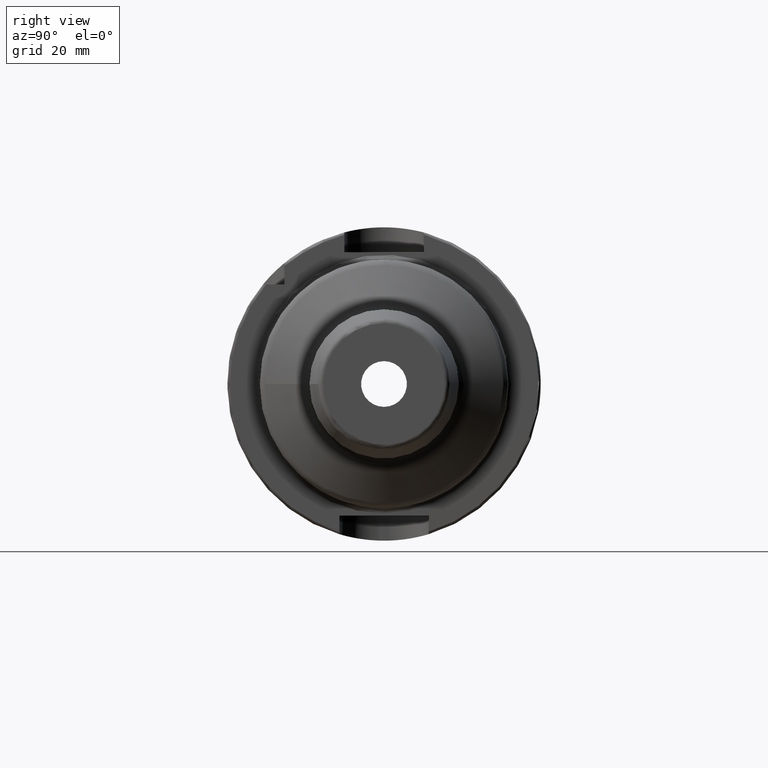
[diagram: clean part render]
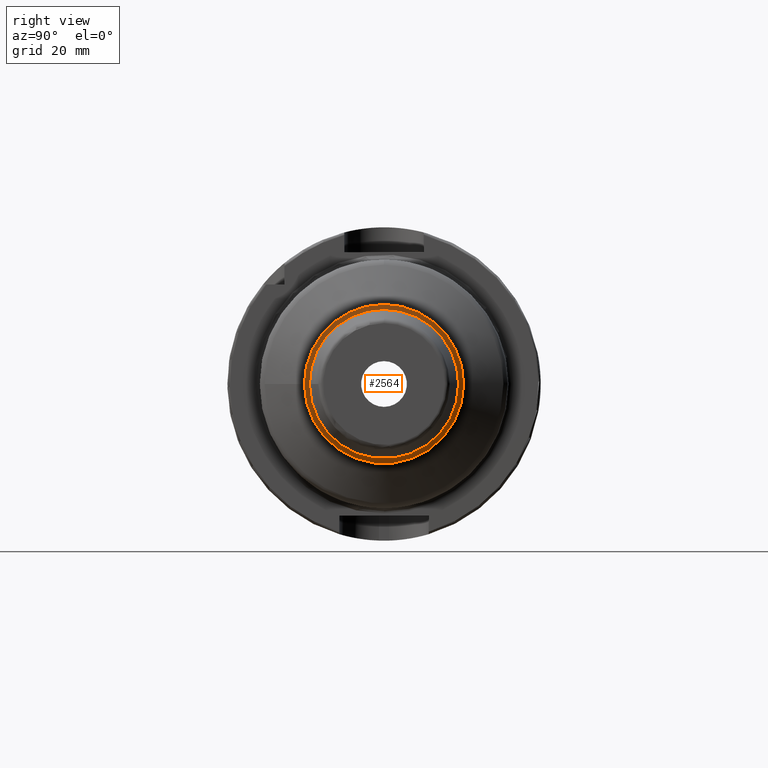
[diagram: same view with one face highlighted and labeled with its STEP entity id]
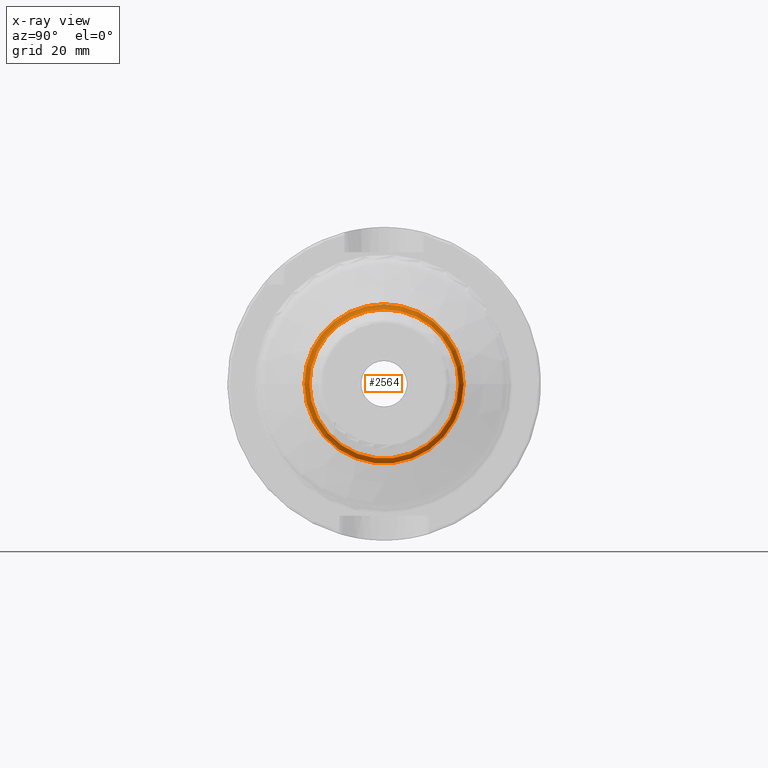
[diagram: x-ray of the same camera — body ghosted, the highlighted face saturated]
A machine part, right view. The second image highlights one B-rep face of the part: STEP entity #2564.
The next image is the same camera in x-ray: the body ghosted, the highlighted face saturated — about 0% of this face is hidden behind the body in this view.
In plain terms, the highlighted toroidal blend (fillet) surface has major radius 17 mm and minor (blend) radius 2 mm.
Its self-contained STEP definition (entity closure, byte-faithful):
#97=TOROIDAL_SURFACE('',#2733,17.,2.);
#210=FACE_OUTER_BOUND('',#348,.T.);
#348=EDGE_LOOP('',(#1700,#1701,#1702,#1703,#1704,#1705,#1706,#1707));
#734=CIRCLE('',#2734,16.);
#735=CIRCLE('',#2735,2.);
#736=CIRCLE('',#2736,15.);
#737=CIRCLE('',#2737,15.);
#738=CIRCLE('',#2738,15.);
#739=CIRCLE('',#2739,16.);
#740=CIRCLE('',#2740,16.);
#962=VERTEX_POINT('',#3981);
#963=VERTEX_POINT('',#3982);
#964=VERTEX_POINT('',#3984);
#965=VERTEX_POINT('',#3986);
#966=VERTEX_POINT('',#3988);
#967=VERTEX_POINT('',#3991);
#1262=EDGE_CURVE('',#962,#963,#734,.T.);
#1263=EDGE_CURVE('',#963,#964,#735,.T.);
#1264=EDGE_CURVE('',#964,#965,#736,.T.);
#1265=EDGE_CURVE('',#965,#966,#737,.T.);
#1266=EDGE_CURVE('',#966,#964,#738,.T.);
#1267=EDGE_CURVE('',#963,#967,#739,.T.);
#1268=EDGE_CURVE('',#967,#962,#740,.T.);
#1700=ORIENTED_EDGE('',*,*,#1262,.T.);
#1701=ORIENTED_EDGE('',*,*,#1263,.T.);
#1702=ORIENTED_EDGE('',*,*,#1264,.T.);
#1703=ORIENTED_EDGE('',*,*,#1265,.T.);
#1704=ORIENTED_EDGE('',*,*,#1266,.T.);
#1705=ORIENTED_EDGE('',*,*,#1263,.F.);
#1706=ORIENTED_EDGE('',*,*,#1267,.T.);
#1707=ORIENTED_EDGE('',*,*,#1268,.T.);
#2564=ADVANCED_FACE('',(#210),#97,.F.);
#2733=AXIS2_PLACEMENT_3D('',#3980,#3128,#3129);
#2734=AXIS2_PLACEMENT_3D('',#3983,#3130,#3131);
#2735=AXIS2_PLACEMENT_3D('',#3985,#3132,#3133);
#2736=AXIS2_PLACEMENT_3D('',#3987,#3134,#3135);
#2737=AXIS2_PLACEMENT_3D('',#3989,#3136,#3137);
#2738=AXIS2_PLACEMENT_3D('',#3990,#3138,#3139);
#2739=AXIS2_PLACEMENT_3D('',#3992,#3140,#3141);
#2740=AXIS2_PLACEMENT_3D('',#3993,#3142,#3143);
#3128=DIRECTION('center_axis',(1.,0.,0.));
#3129=DIRECTION('ref_axis',(0.,0.,-1.));
#3130=DIRECTION('center_axis',(1.,0.,0.));
#3131=DIRECTION('ref_axis',(0.,-1.,3.06161699786838E-17));
#3132=DIRECTION('center_axis',(0.,-1.,-1.22464679914735E-16));
#3133=DIRECTION('ref_axis',(0.,-1.22464679914735E-16,1.));
#3134=DIRECTION('center_axis',(-1.,0.,0.));
#3135=DIRECTION('ref_axis',(0.,-1.,1.83697019872103E-16));
#3136=DIRECTION('center_axis',(-1.,0.,0.));
#3137=DIRECTION('ref_axis',(0.,-1.,1.83697019872103E-16));
#3138=DIRECTION('center_axis',(-1.,0.,0.));
#3139=DIRECTION('ref_axis',(0.,-1.,1.83697019872103E-16));
#3140=DIRECTION('center_axis',(1.,0.,0.));
#3141=DIRECTION('ref_axis',(0.,-1.,3.06161699786838E-17));
#3142=DIRECTION('center_axis',(1.,0.,0.));
#3143=DIRECTION('ref_axis',(0.,-1.,3.06161699786838E-17));
#3980=CARTESIAN_POINT('Origin',(48.1547005383792,0.,0.));
#3981=CARTESIAN_POINT('',(46.4226497308104,16.,-9.79717439317882E-16));
#3982=CARTESIAN_POINT('',(46.4226497308104,-1.95943487863576E-15,16.));
#3983=CARTESIAN_POINT('Origin',(46.4226497308104,0.,-2.44929359829471E-15));
#3984=CARTESIAN_POINT('',(48.1547005383792,-1.83697019872103E-15,15.));
#3985=CARTESIAN_POINT('Origin',(48.1547005383792,-2.0818995585505E-15,17.));
#3986=CARTESIAN_POINT('',(48.1547005383792,15.,-4.59242549680257E-15));
#3987=CARTESIAN_POINT('Origin',(48.1547005383792,0.,0.));
#3988=CARTESIAN_POINT('',(48.1547005383792,-15.,-1.83697019872103E-15));
#3989=CARTESIAN_POINT('Origin',(48.1547005383792,0.,0.));
#3990=CARTESIAN_POINT('Origin',(48.1547005383792,0.,0.));
#3991=CARTESIAN_POINT('',(46.4226497308104,-16.,-1.95943487863576E-15));
#3992=CARTESIAN_POINT('Origin',(46.4226497308104,0.,-2.44929359829471E-15));
#3993=CARTESIAN_POINT('Origin',(46.4226497308104,0.,-2.44929359829471E-15));